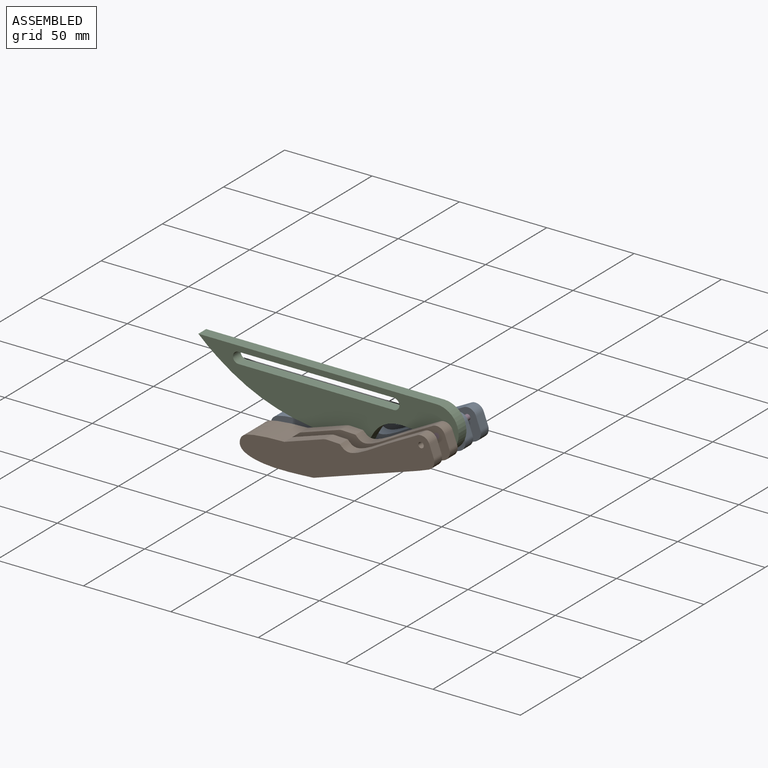
[diagram: assembled view]
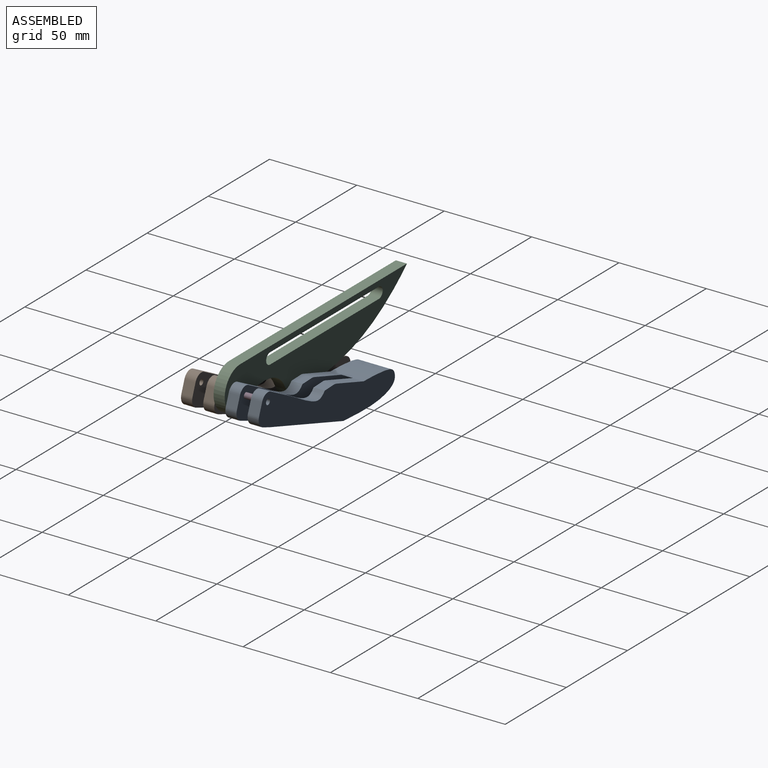
[diagram: assembled view, second angle]
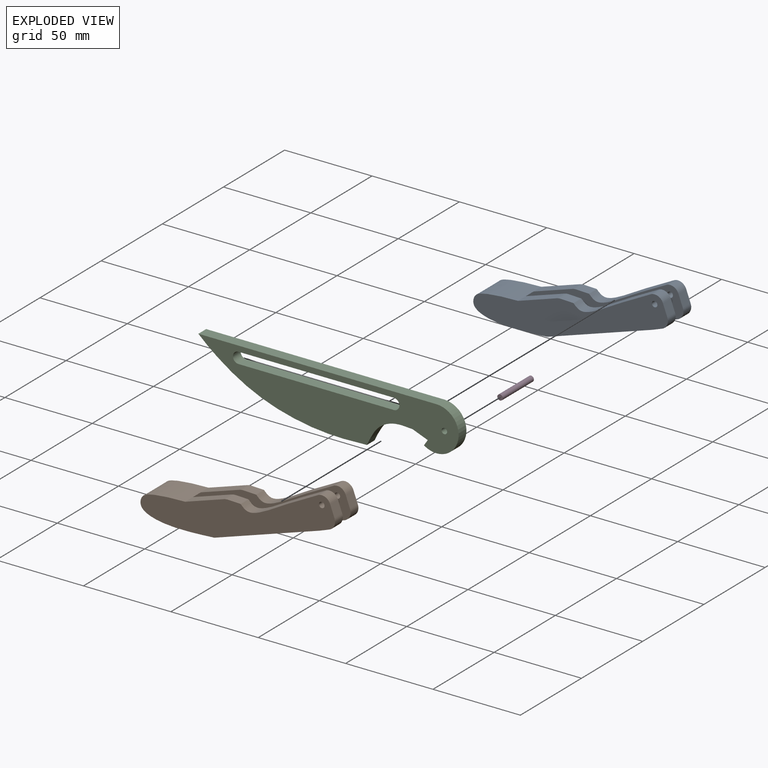
[diagram: exploded view]
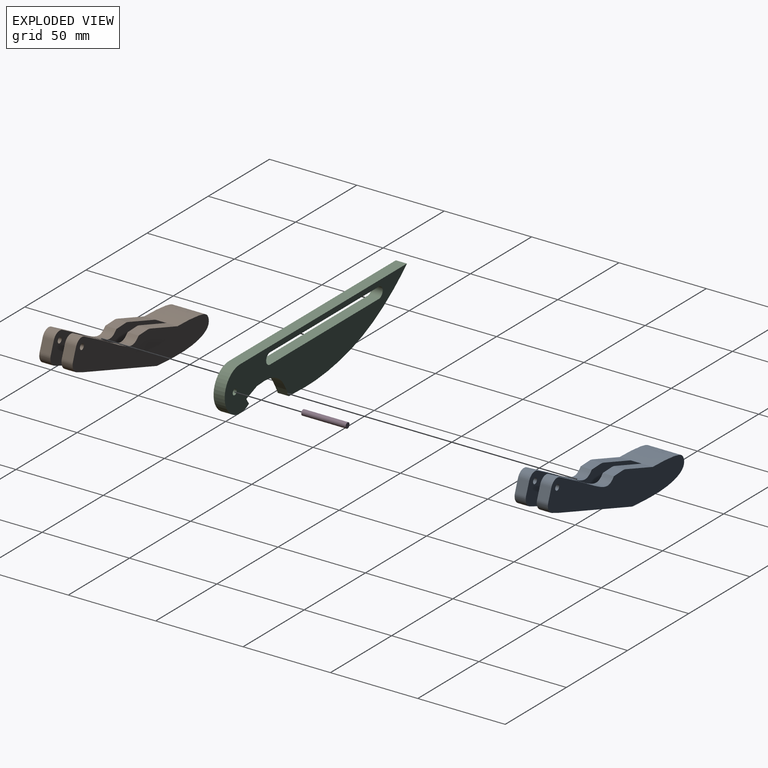
[diagram: exploded view, second angle]
ASSEMBLY  parts=4 mates=3
PART A: 26 faces, bbox 27.7x19.1x112.1 mm
  f0: plane 23.35x6.35mm, normal (-1,0,0.04), area 148.4mm2, adj f2,f11,f22,f25
  f1: cylinder r=6.35mm len=6.35mm, axis (0,1,0), area 14.3mm2, adj f10,f12,f21,f24
  f2: extruded ~37.41x24.76mm, area 1132.2mm2, adj f0,f3,f12,f13,f21,f22,f23,f24
  f3: plane 63.36x6.35mm, normal (1,0,-0.04), area 402.6mm2, adj f2,f4,f21,f24
  f4: plane 6.35x5.89mm, normal (1,0,0), area 37.4mm2, adj f3,f5,f21,f24
  f5: cylinder r=5.08mm len=6.35mm, axis (0,1,0), area 50.7mm2, adj f4,f6,f21,f24
  f6: plane 7.21x6.35mm, normal (0,0,1), area 45.8mm2, adj f5,f7,f21,f24
  f7: cylinder r=5.08mm len=6.35mm, axis (0,1,0), area 50.7mm2, adj f6,f8,f21,f24
  f8: extruded ~47.63x6.35mm, area 319.9mm2, adj f7,f10,f21,f24
  f9: cylinder r=1.59mm len=6.35mm, axis (0,1,0), area 63.3mm2, adj f21,f24
  f10: plane 6.78x6.35mm, normal (-0.92,0,0.38), area 46.6mm2, adj f1,f8,f21,f24
  f11: cylinder r=6.35mm len=6.35mm, axis (0,1,0), area 14.3mm2, adj f0,f20,f22,f25
  f12: plane 23.35x6.35mm, normal (-1,0,0.04), area 148.4mm2, adj f1,f2,f21,f24
  f13: plane 63.36x6.35mm, normal (1,0,-0.04), area 402.6mm2, adj f2,f14,f22,f25
  f14: plane 6.35x5.89mm, normal (1,0,0), area 37.4mm2, adj f13,f15,f22,f25
  f15: cylinder r=5.08mm len=6.35mm, axis (0,1,0), area 50.7mm2, adj f14,f16,f22,f25
  f16: plane 7.21x6.35mm, normal (0,0,1), area 45.8mm2, adj f15,f17,f22,f25
  f17: cylinder r=5.08mm len=6.35mm, axis (0,1,0), area 50.7mm2, adj f16,f18,f22,f25
  f18: extruded ~47.63x6.35mm, area 319.9mm2, adj f17,f20,f22,f25
  f19: cylinder r=1.59mm len=6.35mm, axis (0,1,0), area 63.3mm2, adj f22,f25
  f20: plane 6.78x6.35mm, normal (-0.92,0,0.38), area 46.6mm2, adj f11,f18,f22,f25
  f21: plane 112.14x27.67mm, normal (0,-1,0), area 1665.4mm2, adj f1,f2,f3,f4,f5,f6,f7,f8
  f22: plane 112.14x27.67mm, normal (0,1,0), area 1665.4mm2, adj f0,f2,f11,f13,f14,f15,f16,f17
  f23: plane 26.72x6.35mm, normal (1,0,-0.04), area 169.8mm2, adj f2,f24,f25
  f24: plane 112.14x23.06mm, normal (0,1,0), area 1583.7mm2, adj f1,f2,f3,f4,f5,f6,f7,f8
  f25: plane 112.14x23.06mm, normal (0,-1,0), area 1583.7mm2, adj f0,f2,f11,f13,f14,f15,f16,f17
PART B: same geometry as A
PART C: 13 faces, bbox 148.9x6.4x32.5 mm
  f0: plane 136.24x6.35mm, normal (0,0,1), area 865.1mm2, adj f1,f9,f10,f11
  f1: extruded ~96.44x32.11mm, area 665mm2, adj f0,f2,f10,f11
  f2: extruded ~26.13x15.53mm, area 212.1mm2, adj f1,f3,f10,f11
  f3: plane 8.69x6.35mm, normal (-0.36,0,-0.93), area 59.1mm2, adj f2,f4,f10,f11
  f4: plane 6.35x3.28mm, normal (-0.83,0,0.55), area 25mm2, adj f3,f9,f10,f11
  f5: plane 88.9x6.35mm, normal (0,0,1), area 564.5mm2, adj f6,f8,f10,f11
  f6: cylinder r=3.17mm len=6.35mm, axis (0,1,0), area 63.3mm2, adj f5,f7,f10,f11
  f7: plane 88.9x6.35mm, normal (0,0,-1), area 564.5mm2, adj f6,f8,f10,f11
  f8: cylinder r=3.17mm len=6.35mm, axis (0,1,0), area 63.3mm2, adj f5,f7,f10,f11
  f9: cylinder r=12.7mm len=25.4mm, axis (0,1,0), area 301.7mm2, adj f0,f4,f10,f11
  f10: plane 148.94x32.45mm, normal (0,-1,0), area 2728.7mm2, adj f0,f1,f2,f3,f4,f5,f6,f7
  f11: plane 148.94x32.45mm, normal (0,1,0), area 2728.7mm2, adj f0,f1,f2,f3,f4,f5,f6,f7
  f12: cylinder r=1.59mm len=6.35mm, axis (0,-1,0), area 63.3mm2, adj f10,f11
PART D: 3 faces, bbox 3.2x25.4x3.2 mm
  f0: cylinder r=1.59mm len=25.4mm, axis (0,1,0), area 253.4mm2, adj f1,f2
  f1: plane 3.18x3.18mm, normal (0,-1,0), area 7.9mm2, adj f0
  f2: plane 3.18x3.18mm, normal (0,1,0), area 7.9mm2, adj f0
PLACE A rot(axis=(0,1,0),69.6deg) t=(-44.29,-10.72,38.28)mm
PLACE B rot(axis=(0,1,0),69.6deg) t=(-44.29,-36.12,38.28)mm
PLACE C t=(-11.84,-23.42,8.57)mm fixed
PLACE D rot(axis=(0,1,0),69.6deg) t=(-56.55,-20.24,35.15)mm
MATE revolute B.f7 <-> C.f12  axis (0,1,0) through (-14.91,-26.59,36.53)mm
MATE fastened D.f0 <-> B.f7  axis (0,-1,0) through (-14.91,-32.94,36.53)mm
MATE fastened A.f7 <-> D.f0  axis (0,1,0) through (-14.91,-13.89,36.53)mm
